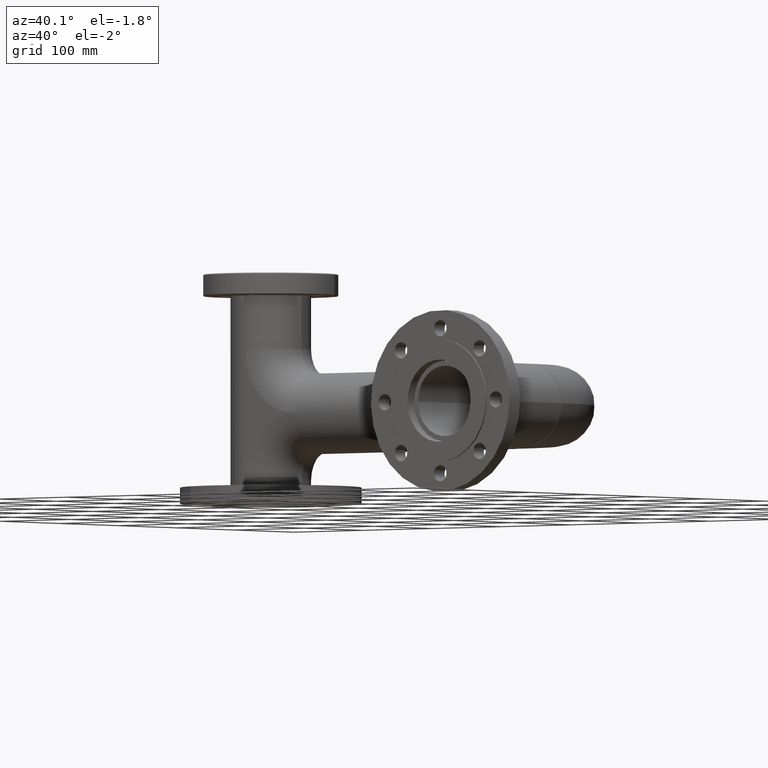
[diagram: clean part render]
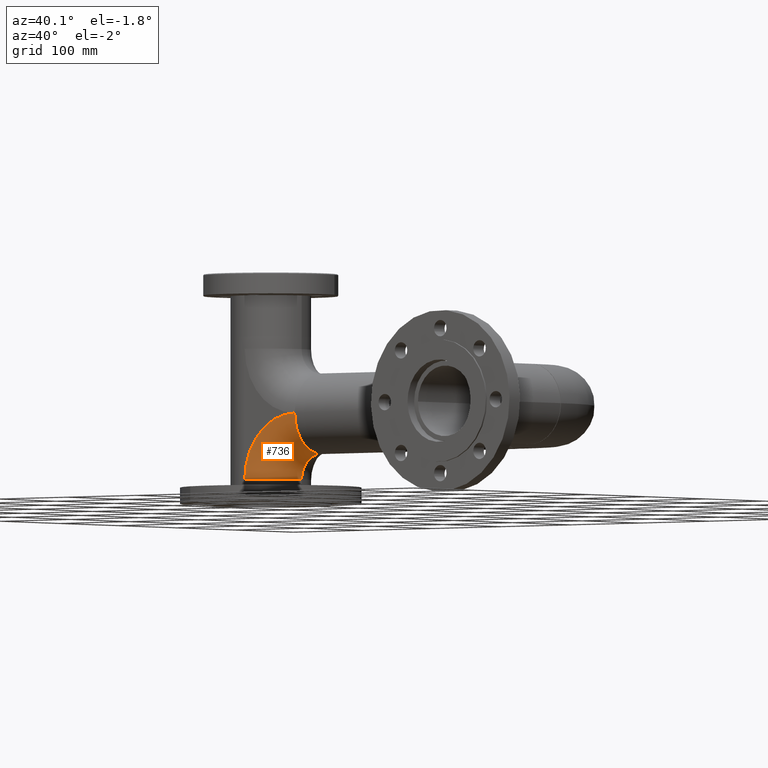
[diagram: same view with one face highlighted and labeled with its STEP entity id]
A machine part, auxiliary view. The second image highlights one B-rep face of the part: STEP entity #736.
In plain terms, the highlighted toroidal blend (fillet) surface has major radius 71.95 mm and minor (blend) radius 44.45 mm.
Its self-contained STEP definition (entity closure, byte-faithful):
#44 = DIRECTION ( 'NONE',  ( 0.000000000000000000, 0.000000000000000000, 1.000000000000000000 ) ) ;
#113 = AXIS2_PLACEMENT_3D ( 'NONE', #1856, #1654, #44 ) ;
#128 = VERTEX_POINT ( 'NONE', #2783 ) ;
#159 = DIRECTION ( 'NONE',  ( -0.000000000000000000, 0.000000000000000000, -1.000000000000000000 ) ) ;
#172 = CARTESIAN_POINT ( 'NONE',  ( 0.000000000000000000, 44.44999999999998863, -71.95000000000003126 ) ) ;
#258 = VERTEX_POINT ( 'NONE', #658 ) ;
#271 = AXIS2_PLACEMENT_3D ( 'NONE', #2709, #1929, #2439 ) ;
#531 = DIRECTION ( 'NONE',  ( -1.000000000000000000, -0.000000000000000000, -0.000000000000000000 ) ) ;
#658 = CARTESIAN_POINT ( 'NONE',  ( 44.45000000000000284, 71.95000000000001705, 0.000000000000000000 ) ) ;
#683 = VERTEX_POINT ( 'NONE', #2916 ) ;
#736 = ADVANCED_FACE ( 'NONE', ( #2335 ), #2680, .T. ) ;
#1039 = AXIS2_PLACEMENT_3D ( 'NONE', #2524, #159, #1213 ) ;
#1213 = DIRECTION ( 'NONE',  ( 1.000000000000000000, 0.000000000000000000, 0.000000000000000000 ) ) ;
#1327 = EDGE_LOOP ( 'NONE', ( #2866, #2140, #1528, #1479 ) ) ;
#1347 = AXIS2_PLACEMENT_3D ( 'NONE', #3200, #531, #1574 ) ;
#1479 = ORIENTED_EDGE ( 'NONE', *, *, #3350, .F. ) ;
#1528 = ORIENTED_EDGE ( 'NONE', *, *, #2108, .T. ) ;
#1574 = DIRECTION ( 'NONE',  ( 0.000000000000000000, 0.000000000000000000, 1.000000000000000000 ) ) ;
#1654 = DIRECTION ( 'NONE',  ( -1.000000000000000000, -0.000000000000000000, -0.000000000000000000 ) ) ;
#1856 = CARTESIAN_POINT ( 'NONE',  ( 5.443555022209984909E-15, 71.95000000000000284, -71.95000000000001705 ) ) ;
#1865 = CIRCLE ( 'NONE', #271, 44.44999999999999574 ) ;
#1915 = CIRCLE ( 'NONE', #1039, 44.44999999999999574 ) ;
#1929 = DIRECTION ( 'NONE',  ( 0.000000000000000000, -1.000000000000000000, -2.460047082997561534E-16 ) ) ;
#2032 = EDGE_CURVE ( 'NONE', #2778, #128, #1915, .T. ) ;
#2099 = CIRCLE ( 'NONE', #2543, 71.95000000000001705 ) ;
#2108 = EDGE_CURVE ( 'NONE', #683, #258, #1865, .T. ) ;
#2140 = ORIENTED_EDGE ( 'NONE', *, *, #3062, .T. ) ;
#2335 = FACE_OUTER_BOUND ( 'NONE', #1327, .T. ) ;
#2382 = CIRCLE ( 'NONE', #113, 27.50000000000000355 ) ;
#2408 = DIRECTION ( 'NONE',  ( -1.000000000000000000, -0.000000000000000000, 0.000000000000000000 ) ) ;
#2425 = CARTESIAN_POINT ( 'NONE',  ( 44.45000000000000284, 71.95000000000001705, -71.95000000000001705 ) ) ;
#2439 = DIRECTION ( 'NONE',  ( 1.000000000000000000, 0.000000000000000000, 0.000000000000000000 ) ) ;
#2524 = CARTESIAN_POINT ( 'NONE',  ( 0.000000000000000000, -8.586735167052057225E-15, -71.95000000000003126 ) ) ;
#2543 = AXIS2_PLACEMENT_3D ( 'NONE', #2425, #2408, #3417 ) ;
#2680 = TOROIDAL_SURFACE ( 'NONE', #1347, 71.95000000000000284, 44.44999999999999574 ) ;
#2709 = CARTESIAN_POINT ( 'NONE',  ( 0.000000000000000000, 71.95000000000001705, 5.291052640762398742E-15 ) ) ;
#2778 = VERTEX_POINT ( 'NONE', #172 ) ;
#2783 = CARTESIAN_POINT ( 'NONE',  ( 44.44999999999999574, -8.586735167052057225E-15, -71.95000000000003126 ) ) ;
#2866 = ORIENTED_EDGE ( 'NONE', *, *, #2032, .F. ) ;
#2916 = CARTESIAN_POINT ( 'NONE',  ( 5.443555022209984909E-15, 71.95000000000003126, -44.44999999999998863 ) ) ;
#3062 = EDGE_CURVE ( 'NONE', #2778, #683, #2382, .T. ) ;
#3200 = CARTESIAN_POINT ( 'NONE',  ( 0.000000000000000000, 71.95000000000000284, -71.95000000000001705 ) ) ;
#3350 = EDGE_CURVE ( 'NONE', #128, #258, #2099, .T. ) ;
#3417 = DIRECTION ( 'NONE',  ( 0.000000000000000000, 0.000000000000000000, 1.000000000000000000 ) ) ;